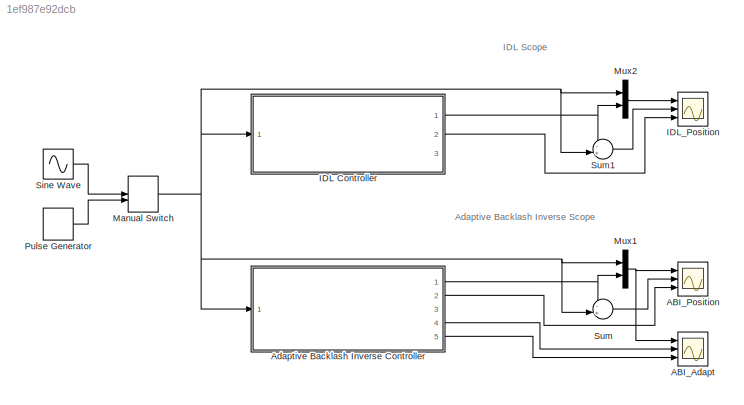
MODEL slx_1ef987e92dcb
KIND model
CONFIG AbsTol = auto
CONFIG EnableMultiTasking = off
CONFIG FixedStep = auto
CONFIG MaxStep = auto
CONFIG MinStep = auto
CONFIG RelTol = 1e-3
CONFIG SampleTimeConstraint = Unconstrained
CONFIG Solver = VariableStepAuto
CONFIG SolverName = VariableStepAuto
CONFIG StartTime = 0.0
CONFIG StopTime = 500
BLOCK [Scope] ABI_Adapt
  NumInputPorts = 3
  Ports = [3]
  ScopeSpecificationString = Simulink.scopes.TimeScopeBlockCfg('CurrentConfiguration', extmgr.ConfigurationSet(extmgr.Configuration('Core','General UI',true,'FigureColor',[1 1 1]),extmgr.Configuration('Core','Source UI',true),extmgr.Configuration('Sources','WiredSimulink',true,'DataLoggingVariableName','ScopeData2'),extmgr.Configuration('Visuals','Time Domain',true,'SerializedDisplays',{struct('MinYLimReal','-0.35251','MaxYLi...<+3394ch>
BLOCK [Scope] ABI_Position
  NumInputPorts = 3
  Ports = [3]
  ScopeSpecificationString = Simulink.scopes.TimeScopeBlockCfg('CurrentConfiguration', extmgr.ConfigurationSet(extmgr.Configuration('Core','General UI',true,'FigureColor',[1 1 1]),extmgr.Configuration('Core','Source UI',true),extmgr.Configuration('Sources','WiredSimulink',true,'DataLoggingVariableName','ScopeData1'),extmgr.Configuration('Visuals','Time Domain',true,'SerializedDisplays',{struct('MinYLimReal','-2.51694','MaxYLi...<+3349ch>
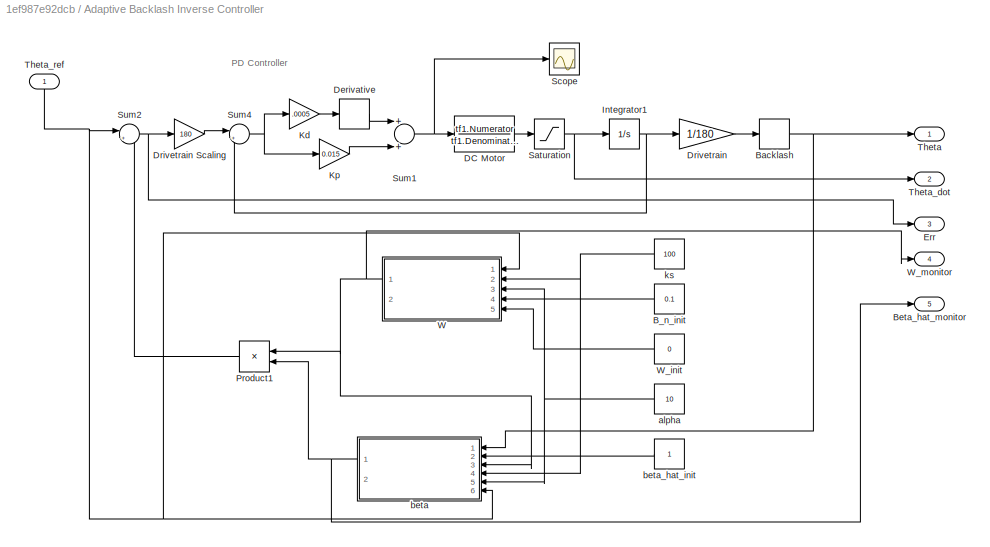
BLOCK [SubSystem] Adaptive Backlash Inverse Controller
  Ports = [1, 5]
  RequestExecContextInheritance = off
  Variant = off
BLOCK [Constant] Adaptive Backlash Inverse Controller/B_n_init
  Value = 0.1
BLOCK [Backlash] Adaptive Backlash Inverse Controller/Backlash
  BacklashWidth = 0.25
  InputProcessing = Elements as channels (sample based)
BLOCK [Outport] Adaptive Backlash Inverse Controller/Beta_hat_monitor
  IconDisplay = Port number
  Port = 5
BLOCK [TransferFcn] Adaptive Backlash Inverse Controller/DC Motor
  Denominator = tf1.Denominator
  Numerator = tf1.Numerator
BLOCK [Derivative] Adaptive Backlash Inverse Controller/Derivative
BLOCK [Gain] Adaptive Backlash Inverse Controller/Drivetrain
  Gain = 1/180
  OutDataTypeStr = Inherit: Inherit via internal rule
  ParamDataTypeStr = Inherit: Inherit via internal rule
  SaturateOnIntegerOverflow = off
BLOCK [Gain] Adaptive Backlash Inverse Controller/Drivetrain Scaling
  Gain = 180
  OutDataTypeStr = Inherit: Inherit via internal rule
  ParamDataTypeStr = Inherit: Inherit via internal rule
  SaturateOnIntegerOverflow = off
BLOCK [Outport] Adaptive Backlash Inverse Controller/Err
  IconDisplay = Port number
  Port = 3
BLOCK [Integrator] Adaptive Backlash Inverse Controller/Integrator1
  Ports = [1, 1]
BLOCK [Gain] Adaptive Backlash Inverse Controller/Kd
  Gain = .0005
  OutDataTypeStr = Inherit: Inherit via internal rule
  ParamDataTypeStr = Inherit: Inherit via internal rule
  SaturateOnIntegerOverflow = off
BLOCK [Gain] Adaptive Backlash Inverse Controller/Kp
  Gain = 0.015
  OutDataTypeStr = Inherit: Inherit via internal rule
  ParamDataTypeStr = Inherit: Inherit via internal rule
  SaturateOnIntegerOverflow = off
BLOCK [Product] Adaptive Backlash Inverse Controller/Product1
  InputSameDT = off
  OutDataTypeStr = Inherit: Inherit via internal rule
  Ports = [2, 1]
  RndMeth = Floor
  SaturateOnIntegerOverflow = off
BLOCK [Saturate] Adaptive Backlash Inverse Controller/Saturation
  InputPortMap = u0
  LowerLimit = -460
  Ports = [1, 1]
  UpperLimit = 460
BLOCK [Scope] Adaptive Backlash Inverse Controller/Scope
  NumInputPorts = 1
  Ports = [1]
  ScopeSpecificationString = Simulink.scopes.TimeScopeBlockCfg('CurrentConfiguration', extmgr.ConfigurationSet(extmgr.Configuration('Core','General UI',true),extmgr.Configuration('Core','Source UI',true),extmgr.Configuration('Sources','WiredSimulink',true,'DataLoggingVariableName','ScopeData1'),extmgr.Configuration('Visuals','Time Domain',true,'SerializedDisplays',{struct('MinYLimReal','-1.71823','MaxYLimReal','1.71959','YLab...<+1391ch>
BLOCK [Sum] Adaptive Backlash Inverse Controller/Sum1
  InputSameDT = off
  OutDataTypeStr = Inherit: Inherit via internal rule
  Ports = [2, 1]
  SaturateOnIntegerOverflow = off
BLOCK [Sum] Adaptive Backlash Inverse Controller/Sum2
  IconShape = round
  InputSameDT = off
  Inputs = |++
  OutDataTypeStr = Inherit: Inherit via internal rule
  Ports = [2, 1]
  SaturateOnIntegerOverflow = off
BLOCK [Sum] Adaptive Backlash Inverse Controller/Sum4
  IconShape = round
  InputSameDT = off
  Inputs = |+-
  OutDataTypeStr = Inherit: Inherit via internal rule
  Ports = [2, 1]
  SaturateOnIntegerOverflow = off
BLOCK [Outport] Adaptive Backlash Inverse Controller/Theta
  IconDisplay = Port number
BLOCK [Outport] Adaptive Backlash Inverse Controller/Theta_dot
  IconDisplay = Port number
  Port = 2
BLOCK [Inport] Adaptive Backlash Inverse Controller/Theta_ref
  IconDisplay = Port number
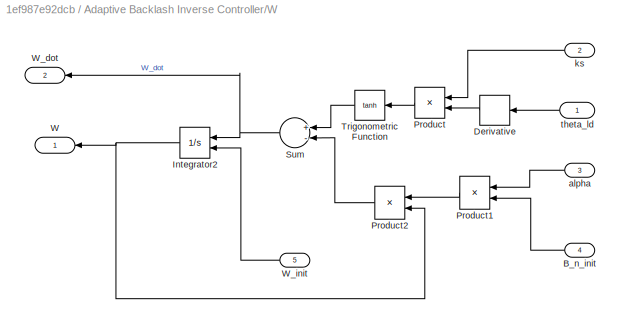
BLOCK [SubSystem] Adaptive Backlash Inverse Controller/W
  Ports = [5, 2]
  RequestExecContextInheritance = off
  Variant = off
BLOCK [Inport] Adaptive Backlash Inverse Controller/W/B_n_init
  IconDisplay = Port number
  Port = 4
BLOCK [Derivative] Adaptive Backlash Inverse Controller/W/Derivative
BLOCK [Integrator] Adaptive Backlash Inverse Controller/W/Integrator2
  InitialConditionSource = external
  Ports = [2, 1]
BLOCK [Product] Adaptive Backlash Inverse Controller/W/Product
  InputSameDT = off
  OutDataTypeStr = Inherit: Inherit via internal rule
  Ports = [2, 1]
  RndMeth = Floor
  SaturateOnIntegerOverflow = off
BLOCK [Product] Adaptive Backlash Inverse Controller/W/Product1
  InputSameDT = off
  Inputs = */
  OutDataTypeStr = Inherit: Inherit via internal rule
  Ports = [2, 1]
  RndMeth = Floor
  SaturateOnIntegerOverflow = off
BLOCK [Product] Adaptive Backlash Inverse Controller/W/Product2
  InputSameDT = off
  OutDataTypeStr = Inherit: Inherit via internal rule
  Ports = [2, 1]
  RndMeth = Floor
  SaturateOnIntegerOverflow = off
BLOCK [Sum] Adaptive Backlash Inverse Controller/W/Sum
  InputSameDT = off
  Inputs = +-
  OutDataTypeStr = Inherit: Inherit via internal rule
  Ports = [2, 1]
  SaturateOnIntegerOverflow = off
BLOCK [Trigonometry] Adaptive Backlash Inverse Controller/W/Trigonometric Function
  Operator = tanh
  Ports = [1, 1]
BLOCK [Outport] Adaptive Backlash Inverse Controller/W/W
  IconDisplay = Port number
BLOCK [Outport] Adaptive Backlash Inverse Controller/W/W_dot
  IconDisplay = Port number
  Port = 2
BLOCK [Inport] Adaptive Backlash Inverse Controller/W/W_init
  IconDisplay = Port number
  Port = 5
BLOCK [Inport] Adaptive Backlash Inverse Controller/W/alpha
  IconDisplay = Port number
  Port = 3
BLOCK [Inport] Adaptive Backlash Inverse Controller/W/ks
  IconDisplay = Port number
  Port = 2
BLOCK [Inport] Adaptive Backlash Inverse Controller/W/theta_ld
  IconDisplay = Port number
BLOCK [Constant] Adaptive Backlash Inverse Controller/W_init
  Value = 0
BLOCK [Outport] Adaptive Backlash Inverse Controller/W_monitor
  IconDisplay = Port number
  Port = 4
BLOCK [Constant] Adaptive Backlash Inverse Controller/alpha
  Value = 10
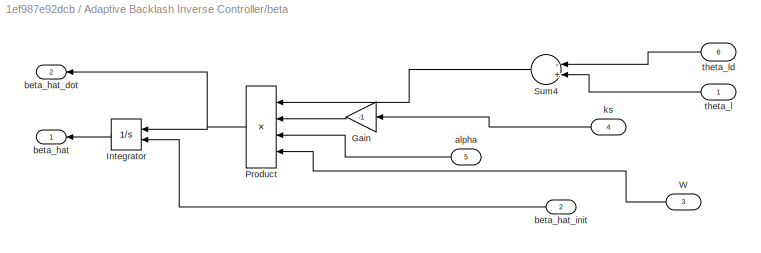
BLOCK [SubSystem] Adaptive Backlash Inverse Controller/beta
  Ports = [6, 2]
  RequestExecContextInheritance = off
  Variant = off
BLOCK [Gain] Adaptive Backlash Inverse Controller/beta/Gain
  Gain = -1
  OutDataTypeStr = Inherit: Inherit via internal rule
  ParamDataTypeStr = Inherit: Inherit via internal rule
  SaturateOnIntegerOverflow = off
BLOCK [Integrator] Adaptive Backlash Inverse Controller/beta/Integrator
  InitialConditionSource = external
  Ports = [2, 1]
BLOCK [Product] Adaptive Backlash Inverse Controller/beta/Product
  InputSameDT = off
  Inputs = ****
  OutDataTypeStr = Inherit: Inherit via internal rule
  Ports = [4, 1]
  RndMeth = Floor
  SaturateOnIntegerOverflow = off
BLOCK [Sum] Adaptive Backlash Inverse Controller/beta/Sum4
  InputSameDT = off
  Inputs = -+
  OutDataTypeStr = Inherit: Inherit via internal rule
  Ports = [2, 1]
  SaturateOnIntegerOverflow = off
BLOCK [Inport] Adaptive Backlash Inverse Controller/beta/W
  IconDisplay = Port number
  Port = 3
BLOCK [Inport] Adaptive Backlash Inverse Controller/beta/alpha
  IconDisplay = Port number
  Port = 5
BLOCK [Outport] Adaptive Backlash Inverse Controller/beta/beta_hat
  IconDisplay = Port number
BLOCK [Outport] Adaptive Backlash Inverse Controller/beta/beta_hat_dot
  IconDisplay = Port number
  Port = 2
BLOCK [Inport] Adaptive Backlash Inverse Controller/beta/beta_hat_init
  IconDisplay = Port number
  Port = 2
BLOCK [Inport] Adaptive Backlash Inverse Controller/beta/ks
  IconDisplay = Port number
  Port = 4
BLOCK [Inport] Adaptive Backlash Inverse Controller/beta/theta_l
  IconDisplay = Port number
BLOCK [Inport] Adaptive Backlash Inverse Controller/beta/theta_ld
  IconDisplay = Port number
  Port = 6
BLOCK [Constant] Adaptive Backlash Inverse Controller/beta_hat_init
BLOCK [Constant] Adaptive Backlash Inverse Controller/ks
  Value = 100
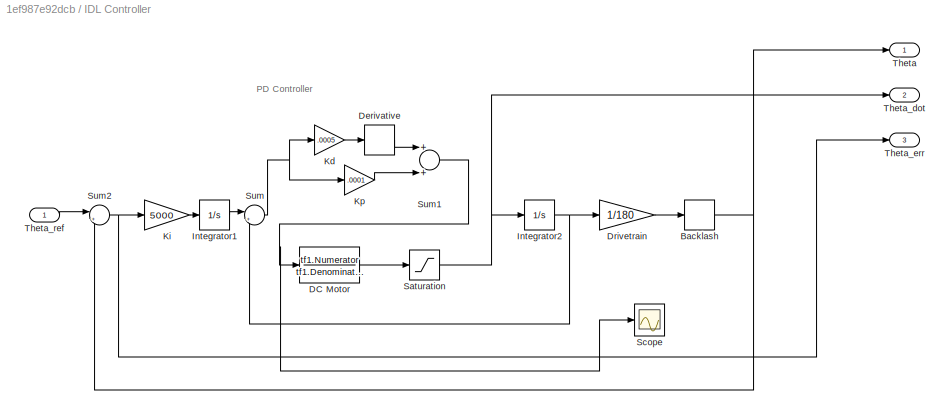
BLOCK [SubSystem] IDL Controller
  Ports = [1, 3]
  RequestExecContextInheritance = off
  Variant = off
BLOCK [Backlash] IDL Controller/Backlash
  BacklashWidth = 0.25
  InputProcessing = Elements as channels (sample based)
BLOCK [TransferFcn] IDL Controller/DC Motor
  Denominator = tf1.Denominator
  Numerator = tf1.Numerator
BLOCK [Derivative] IDL Controller/Derivative
BLOCK [Gain] IDL Controller/Drivetrain
  Gain = 1/180
  OutDataTypeStr = Inherit: Inherit via internal rule
  ParamDataTypeStr = Inherit: Inherit via internal rule
  SaturateOnIntegerOverflow = off
BLOCK [Integrator] IDL Controller/Integrator1
  LimitOutput = on
  LowerSaturationLimit = -500
  Ports = [1, 1]
  UpperSaturationLimit = 500
BLOCK [Integrator] IDL Controller/Integrator2
  Ports = [1, 1]
BLOCK [Gain] IDL Controller/Kd
  Gain = .0005
  OutDataTypeStr = Inherit: Inherit via internal rule
  ParamDataTypeStr = Inherit: Inherit via internal rule
  SaturateOnIntegerOverflow = off
BLOCK [Gain] IDL Controller/Ki
  Gain = 5000
  OutDataTypeStr = Inherit: Inherit via internal rule
  ParamDataTypeStr = Inherit: Inherit via internal rule
  SaturateOnIntegerOverflow = off
BLOCK [Gain] IDL Controller/Kp
  Gain = .0001
  OutDataTypeStr = Inherit: Inherit via internal rule
  ParamDataTypeStr = Inherit: Inherit via internal rule
  SaturateOnIntegerOverflow = off
BLOCK [Saturate] IDL Controller/Saturation
  InputPortMap = u0
  LowerLimit = -460
  Ports = [1, 1]
  UpperLimit = 460
BLOCK [Scope] IDL Controller/Scope
  NumInputPorts = 1
  Ports = [1]
  ScopeSpecificationString = Simulink.scopes.TimeScopeBlockCfg('CurrentConfiguration', extmgr.ConfigurationSet(extmgr.Configuration('Core','General UI',true),extmgr.Configuration('Core','Source UI',true),extmgr.Configuration('Sources','WiredSimulink',true,'DataLoggingVariableName','ScopeData2'),extmgr.Configuration('Visuals','Time Domain',true,'SerializedDisplays',{struct('MinYLimReal','-0.11068','MaxYLimReal','0.23855','YLab...<+1391ch>
BLOCK [Sum] IDL Controller/Sum
  IconShape = round
  InputSameDT = off
  Inputs = |+-
  OutDataTypeStr = Inherit: Inherit via internal rule
  Ports = [2, 1]
  SaturateOnIntegerOverflow = off
BLOCK [Sum] IDL Controller/Sum1
  InputSameDT = off
  OutDataTypeStr = Inherit: Inherit via internal rule
  Ports = [2, 1]
  SaturateOnIntegerOverflow = off
BLOCK [Sum] IDL Controller/Sum2
  IconShape = round
  InputSameDT = off
  Inputs = |+-
  OutDataTypeStr = Inherit: Inherit via internal rule
  Ports = [2, 1]
  SaturateOnIntegerOverflow = off
BLOCK [Outport] IDL Controller/Theta
  IconDisplay = Port number
BLOCK [Outport] IDL Controller/Theta_dot
  IconDisplay = Port number
  Port = 2
BLOCK [Outport] IDL Controller/Theta_err
  IconDisplay = Port number
  Port = 3
BLOCK [Inport] IDL Controller/Theta_ref
  IconDisplay = Port number
BLOCK [Scope] IDL_Position
  NumInputPorts = 3
  Ports = [3]
  ScopeSpecificationString = Simulink.scopes.TimeScopeBlockCfg('CurrentConfiguration', extmgr.ConfigurationSet(extmgr.Configuration('Core','General UI',true,'FigureColor',[1 1 1]),extmgr.Configuration('Core','Source UI',true),extmgr.Configuration('Sources','WiredSimulink',true),extmgr.Configuration('Visuals','Time Domain',true,'SerializedDisplays',{struct('MinYLimReal','-2.50367','MaxYLimReal','2.5036','YLabelReal','Position ...<+3266ch>
BLOCK [ManualSwitch] Manual Switch
BLOCK [Mux] Mux1
  DisplayOption = bar
  Inputs = 2
  Ports = [2, 1]
BLOCK [Mux] Mux2
  DisplayOption = bar
  Inputs = 2
  Ports = [2, 1]
BLOCK [DiscretePulseGenerator] Pulse Generator
  Period = 50
  PhaseDelay = 0.5
  Ports = [0, 1]
  PulseType = Time based
  PulseWidth = 50
BLOCK [Sin] Sine Wave
  Amplitude = 2
  Ports = [0, 1]
  SampleTime = 0
BLOCK [Sum] Sum
  IconShape = round
  InputSameDT = off
  Inputs = -+|
  OutDataTypeStr = Inherit: Inherit via internal rule
  Ports = [2, 1]
  SaturateOnIntegerOverflow = off
BLOCK [Sum] Sum1
  IconShape = round
  InputSameDT = off
  Inputs = -+|
  OutDataTypeStr = Inherit: Inherit via internal rule
  Ports = [2, 1]
  SaturateOnIntegerOverflow = off
ANNOTATION (root): Adaptive Backlash Inverse Scope
ANNOTATION (root): IDL Scope
ANNOTATION Adaptive Backlash Inverse Controller: PD Controller
ANNOTATION IDL Controller: PD Controller
LINE Adaptive Backlash Inverse Controller/B_n_init:1 -> Adaptive Backlash Inverse Controller/W:4
NET Adaptive Backlash Inverse Controller/Backlash:1 -> Adaptive Backlash Inverse Controller/Theta:1, Adaptive Backlash Inverse Controller/beta:1
LINE Adaptive Backlash Inverse Controller/DC Motor:1 -> Adaptive Backlash Inverse Controller/Saturation:1
LINE Adaptive Backlash Inverse Controller/Derivative:1 -> Adaptive Backlash Inverse Controller/Sum1:1
LINE Adaptive Backlash Inverse Controller/Drivetrain Scaling:1 -> Adaptive Backlash Inverse Controller/Sum4:1
LINE Adaptive Backlash Inverse Controller/Drivetrain:1 -> Adaptive Backlash Inverse Controller/Backlash:1
NET Adaptive Backlash Inverse Controller/Integrator1:1 -> Adaptive Backlash Inverse Controller/Drivetrain:1, Adaptive Backlash Inverse Controller/Sum4:2
LINE Adaptive Backlash Inverse Controller/Kd:1 -> Adaptive Backlash Inverse Controller/Derivative:1
LINE Adaptive Backlash Inverse Controller/Kp:1 -> Adaptive Backlash Inverse Controller/Sum1:2
LINE Adaptive Backlash Inverse Controller/Product1:1 -> Adaptive Backlash Inverse Controller/Sum2:2
NET Adaptive Backlash Inverse Controller/Saturation:1 -> Adaptive Backlash Inverse Controller/Integrator1:1, Adaptive Backlash Inverse Controller/Theta_dot:1
NET Adaptive Backlash Inverse Controller/Sum1:1 -> Adaptive Backlash Inverse Controller/DC Motor:1, Adaptive Backlash Inverse Controller/Scope:1
NET Adaptive Backlash Inverse Controller/Sum2:1 -> Adaptive Backlash Inverse Controller/Drivetrain Scaling:1, Adaptive Backlash Inverse Controller/Err:1
NET Adaptive Backlash Inverse Controller/Sum4:1 -> Adaptive Backlash Inverse Controller/Kd:1, Adaptive Backlash Inverse Controller/Kp:1
NET Adaptive Backlash Inverse Controller/Theta_ref:1 -> Adaptive Backlash Inverse Controller/Sum2:1, Adaptive Backlash Inverse Controller/W:1, Adaptive Backlash Inverse Controller/beta:6
LINE Adaptive Backlash Inverse Controller/W/B_n_init:1 -> Adaptive Backlash Inverse Controller/W/Product1:2
LINE Adaptive Backlash Inverse Controller/W/Derivative:1 -> Adaptive Backlash Inverse Controller/W/Product:2
NET Adaptive Backlash Inverse Controller/W/Integrator2:1 -> Adaptive Backlash Inverse Controller/W/Product2:2, Adaptive Backlash Inverse Controller/W/W:1
LINE Adaptive Backlash Inverse Controller/W/Product1:1 -> Adaptive Backlash Inverse Controller/W/Product2:1
LINE Adaptive Backlash Inverse Controller/W/Product2:1 -> Adaptive Backlash Inverse Controller/W/Sum:2
LINE Adaptive Backlash Inverse Controller/W/Product:1 -> Adaptive Backlash Inverse Controller/W/Trigonometric Function:1
NET Adaptive Backlash Inverse Controller/W/Sum:1 -> Adaptive Backlash Inverse Controller/W/Integrator2:1, Adaptive Backlash Inverse Controller/W/W_dot:1
LINE Adaptive Backlash Inverse Controller/W/Trigonometric Function:1 -> Adaptive Backlash Inverse Controller/W/Sum:1
LINE Adaptive Backlash Inverse Controller/W/W_init:1 -> Adaptive Backlash Inverse Controller/W/Integrator2:2
LINE Adaptive Backlash Inverse Controller/W/alpha:1 -> Adaptive Backlash Inverse Controller/W/Product1:1
LINE Adaptive Backlash Inverse Controller/W/ks:1 -> Adaptive Backlash Inverse Controller/W/Product:1
LINE Adaptive Backlash Inverse Controller/W/theta_ld:1 -> Adaptive Backlash Inverse Controller/W/Derivative:1
NET Adaptive Backlash Inverse Controller/W:1 -> Adaptive Backlash Inverse Controller/Product1:1, Adaptive Backlash Inverse Controller/W_monitor:1, Adaptive Backlash Inverse Controller/beta:3
LINE Adaptive Backlash Inverse Controller/W_init:1 -> Adaptive Backlash Inverse Controller/W:5
NET Adaptive Backlash Inverse Controller/alpha:1 -> Adaptive Backlash Inverse Controller/W:3, Adaptive Backlash Inverse Controller/beta:5
LINE Adaptive Backlash Inverse Controller/beta/Gain:1 -> Adaptive Backlash Inverse Controller/beta/Product:2
LINE Adaptive Backlash Inverse Controller/beta/Integrator:1 -> Adaptive Backlash Inverse Controller/beta/beta_hat:1
NET Adaptive Backlash Inverse Controller/beta/Product:1 -> Adaptive Backlash Inverse Controller/beta/Integrator:1, Adaptive Backlash Inverse Controller/beta/beta_hat_dot:1
LINE Adaptive Backlash Inverse Controller/beta/Sum4:1 -> Adaptive Backlash Inverse Controller/beta/Product:1
LINE Adaptive Backlash Inverse Controller/beta/W:1 -> Adaptive Backlash Inverse Controller/beta/Product:4
LINE Adaptive Backlash Inverse Controller/beta/alpha:1 -> Adaptive Backlash Inverse Controller/beta/Product:3
LINE Adaptive Backlash Inverse Controller/beta/beta_hat_init:1 -> Adaptive Backlash Inverse Controller/beta/Integrator:2
LINE Adaptive Backlash Inverse Controller/beta/ks:1 -> Adaptive Backlash Inverse Controller/beta/Gain:1
LINE Adaptive Backlash Inverse Controller/beta/theta_l:1 -> Adaptive Backlash Inverse Controller/beta/Sum4:2
LINE Adaptive Backlash Inverse Controller/beta/theta_ld:1 -> Adaptive Backlash Inverse Controller/beta/Sum4:1
NET Adaptive Backlash Inverse Controller/beta:1 -> Adaptive Backlash Inverse Controller/Beta_hat_monitor:1, Adaptive Backlash Inverse Controller/Product1:2
LINE Adaptive Backlash Inverse Controller/beta_hat_init:1 -> Adaptive Backlash Inverse Controller/beta:2
NET Adaptive Backlash Inverse Controller/ks:1 -> Adaptive Backlash Inverse Controller/W:2, Adaptive Backlash Inverse Controller/beta:4
NET Adaptive Backlash Inverse Controller:1 -> Mux1:2, Sum:1
LINE Adaptive Backlash Inverse Controller:2 -> ABI_Position:3
LINE Adaptive Backlash Inverse Controller:4 -> ABI_Adapt:2
LINE Adaptive Backlash Inverse Controller:5 -> ABI_Adapt:3
NET IDL Controller/Backlash:1 -> IDL Controller/Sum2:2, IDL Controller/Theta:1
LINE IDL Controller/DC Motor:1 -> IDL Controller/Saturation:1
LINE IDL Controller/Derivative:1 -> IDL Controller/Sum1:1
LINE IDL Controller/Drivetrain:1 -> IDL Controller/Backlash:1
LINE IDL Controller/Integrator1:1 -> IDL Controller/Sum:1
NET IDL Controller/Integrator2:1 -> IDL Controller/Drivetrain:1, IDL Controller/Sum:2
LINE IDL Controller/Kd:1 -> IDL Controller/Derivative:1
LINE IDL Controller/Ki:1 -> IDL Controller/Integrator1:1
LINE IDL Controller/Kp:1 -> IDL Controller/Sum1:2
NET IDL Controller/Saturation:1 -> IDL Controller/Integrator2:1, IDL Controller/Theta_dot:1
NET IDL Controller/Sum1:1 -> IDL Controller/DC Motor:1, IDL Controller/Scope:1
NET IDL Controller/Sum2:1 -> IDL Controller/Ki:1, IDL Controller/Theta_err:1
NET IDL Controller/Sum:1 -> IDL Controller/Kd:1, IDL Controller/Kp:1
LINE IDL Controller/Theta_ref:1 -> IDL Controller/Sum2:1
NET IDL Controller:1 -> Mux2:2, Sum1:1
LINE IDL Controller:2 -> IDL_Position:3
NET Manual Switch:1 -> Adaptive Backlash Inverse Controller:1, IDL Controller:1, Mux1:1, Mux2:1, Sum1:2, Sum:2
NET Mux1:1 -> ABI_Adapt:1, ABI_Position:1
LINE Mux2:1 -> IDL_Position:1
LINE Pulse Generator:1 -> Manual Switch:2
LINE Sine Wave:1 -> Manual Switch:1
LINE Sum1:1 -> IDL_Position:2
LINE Sum:1 -> ABI_Position:2
note: NET lines group one-source signal fan-out (src -> all destinations, sorted); 1:1 wires keep LINE
